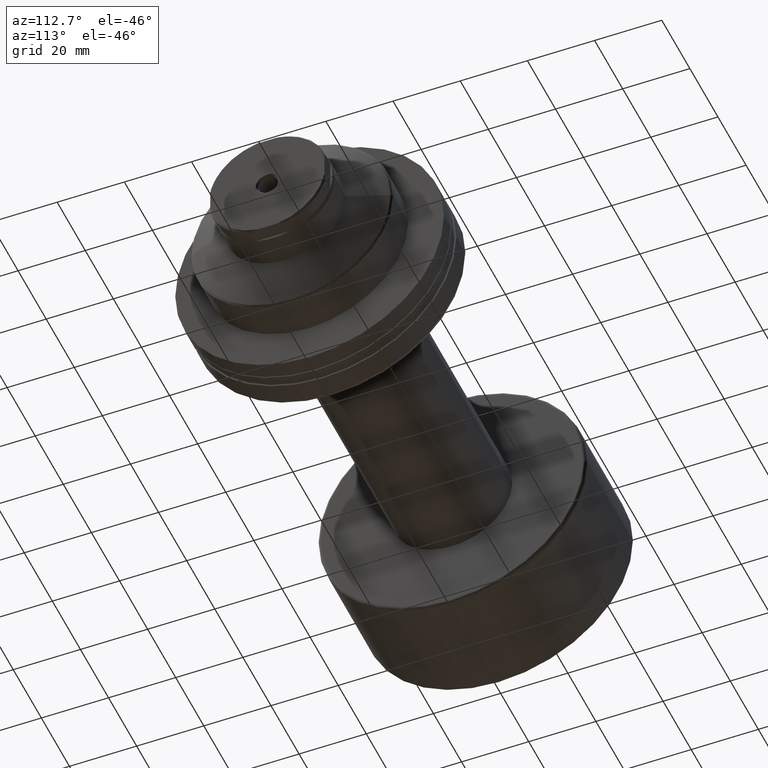
[diagram: clean part render]
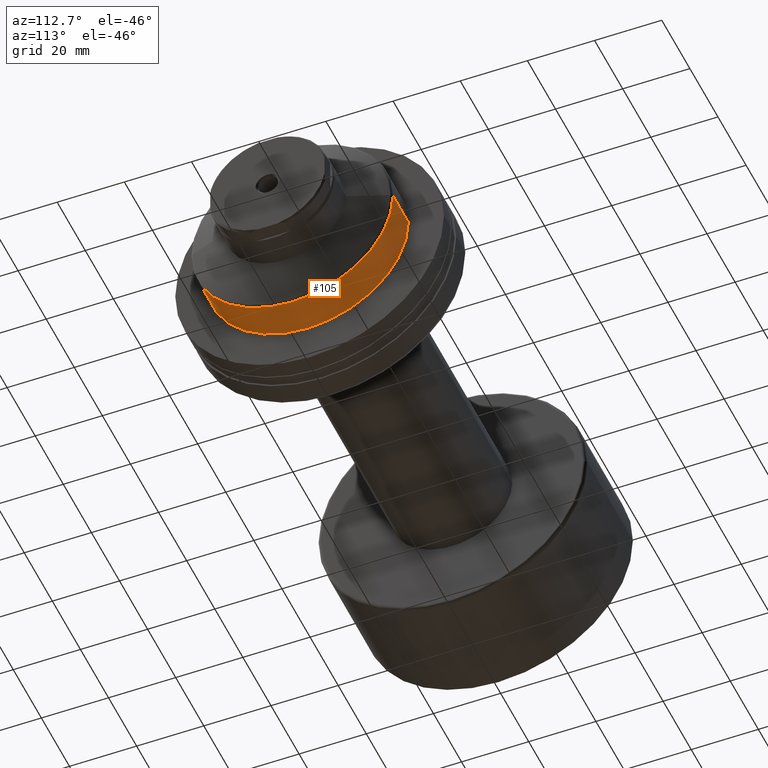
[diagram: same view with one face highlighted and labeled with its STEP entity id]
A machine part, auxiliary view. The second image highlights one B-rep face of the part: STEP entity #105.
In plain terms, the highlighted cylindrical surface (partial cylindrical patch) has radius 30 mm, axis along (1, 0, 0).
Its self-contained STEP definition (entity closure, byte-faithful):
#101 = EDGE_LOOP ( 'NONE', ( #1207, #2189, #518, #709 ) ) ;
#105 = ADVANCED_FACE ( 'NONE', ( #118 ), #919, .T. ) ;
#118 = FACE_OUTER_BOUND ( 'NONE', #101, .T. ) ;
#153 = CARTESIAN_POINT ( 'NONE',  ( -30.28002276692733474, 30.00000000000000711, 0.000000000000000000 ) ) ;
#222 = CARTESIAN_POINT ( 'NONE',  ( -22.50000000000070699, 30.00000000000000711, 0.000000000000000000 ) ) ;
#491 = AXIS2_PLACEMENT_3D ( 'NONE', #2162, #543, #2031 ) ;
#518 = ORIENTED_EDGE ( 'NONE', *, *, #2293, .T. ) ;
#543 = DIRECTION ( 'NONE',  ( 1.000000000000000000, 3.738146982434194072E-16, -0.000000000000000000 ) ) ;
#546 = VERTEX_POINT ( 'NONE', #1926 ) ;
#563 = CIRCLE ( 'NONE', #1853, 30.00000000000000355 ) ;
#709 = ORIENTED_EDGE ( 'NONE', *, *, #1602, .F. ) ;
#833 = DIRECTION ( 'NONE',  ( -3.469446951953613203E-16, 1.000000000000000000, 0.000000000000000000 ) ) ;
#919 = CYLINDRICAL_SURFACE ( 'NONE', #1821, 30.00000000000000711 ) ;
#959 = CARTESIAN_POINT ( 'NONE',  ( -11.60000000000071729, 30.00000000000001421, 0.000000000000000000 ) ) ;
#960 = DIRECTION ( 'NONE',  ( -3.469446951953613696E-16, 1.000000000000000000, 0.000000000000000000 ) ) ;
#984 = VERTEX_POINT ( 'NONE', #959 ) ;
#990 = LINE ( 'NONE', #153, #2150 ) ;
#1024 = DIRECTION ( 'NONE',  ( 1.000000000000000000, 3.738146982434194072E-16, -0.000000000000000000 ) ) ;
#1090 = VECTOR ( 'NONE', #1715, 1000.000000000000000 ) ;
#1093 = VERTEX_POINT ( 'NONE', #1897 ) ;
#1140 = DIRECTION ( 'NONE',  ( 1.000000000000000000, 3.738146982434194072E-16, -0.000000000000000000 ) ) ;
#1207 = ORIENTED_EDGE ( 'NONE', *, *, #1359, .F. ) ;
#1220 = VERTEX_POINT ( 'NONE', #222 ) ;
#1335 = CARTESIAN_POINT ( 'NONE',  ( -30.28002276692731343, -30.00000000000000711, 3.673940397442059967E-15 ) ) ;
#1359 = EDGE_CURVE ( 'NONE', #1093, #546, #2268, .T. ) ;
#1602 = EDGE_CURVE ( 'NONE', #546, #984, #2278, .T. ) ;
#1715 = DIRECTION ( 'NONE',  ( 1.000000000000000000, 3.738146982434194072E-16, -0.000000000000000000 ) ) ;
#1818 = EDGE_CURVE ( 'NONE', #1093, #1220, #563, .T. ) ;
#1821 = AXIS2_PLACEMENT_3D ( 'NONE', #2109, #1024, #833 ) ;
#1853 = AXIS2_PLACEMENT_3D ( 'NONE', #1869, #1140, #960 ) ;
#1869 = CARTESIAN_POINT ( 'NONE',  ( -22.50000000000069633, 2.908286862945609721E-15, 0.000000000000000000 ) ) ;
#1897 = CARTESIAN_POINT ( 'NONE',  ( -22.50000000000068567, -30.00000000000000000, 3.673940397442059967E-15 ) ) ;
#1926 = CARTESIAN_POINT ( 'NONE',  ( -11.60000000000069598, -30.00000000000000000, 3.673940397442059967E-15 ) ) ;
#2031 = DIRECTION ( 'NONE',  ( -3.469446951953613203E-16, 1.000000000000000000, 0.000000000000000000 ) ) ;
#2109 = CARTESIAN_POINT ( 'NONE',  ( -30.28002276692732408, 0.000000000000000000, 0.000000000000000000 ) ) ;
#2150 = VECTOR ( 'NONE', #2284, 1000.000000000000000 ) ;
#2162 = CARTESIAN_POINT ( 'NONE',  ( -11.60000000000070663, 6.982867073798878356E-15, 0.000000000000000000 ) ) ;
#2189 = ORIENTED_EDGE ( 'NONE', *, *, #1818, .T. ) ;
#2268 = LINE ( 'NONE', #1335, #1090 ) ;
#2278 = CIRCLE ( 'NONE', #491, 30.00000000000000711 ) ;
#2284 = DIRECTION ( 'NONE',  ( 1.000000000000000000, 3.738146982434194072E-16, -0.000000000000000000 ) ) ;
#2293 = EDGE_CURVE ( 'NONE', #1220, #984, #990, .T. ) ;